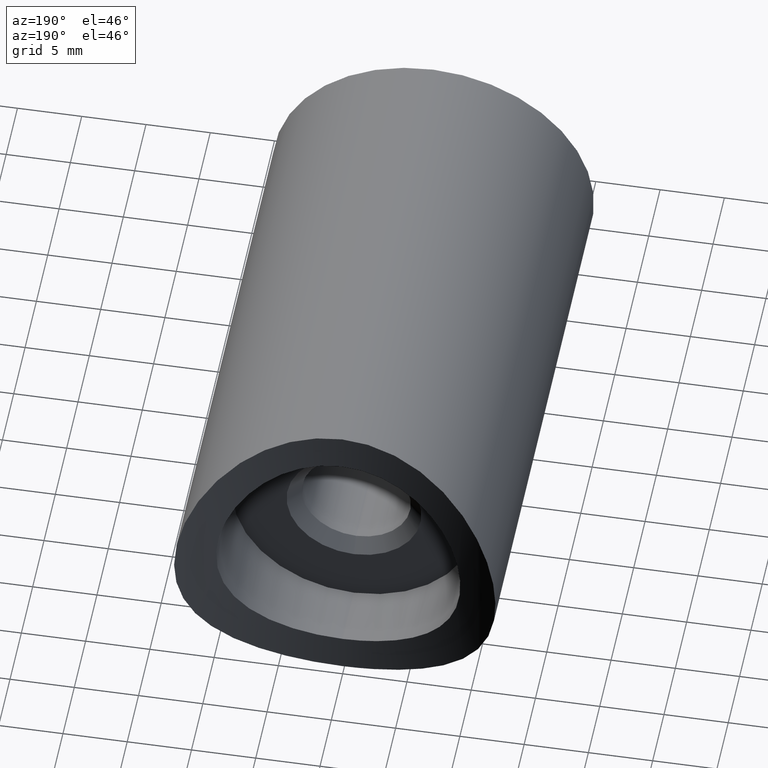
[diagram: clean part render]
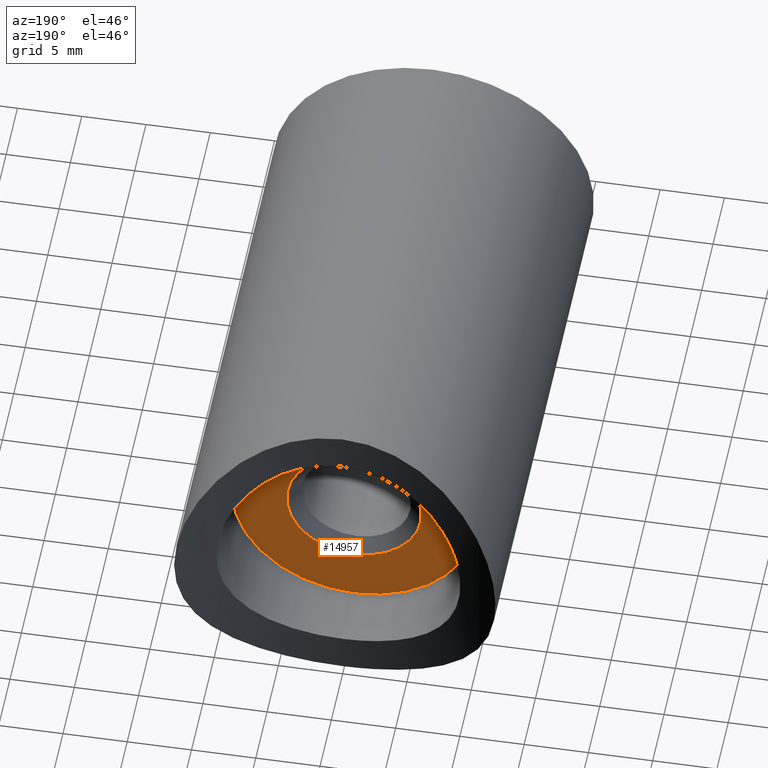
[diagram: same view with one face highlighted and labeled with its STEP entity id]
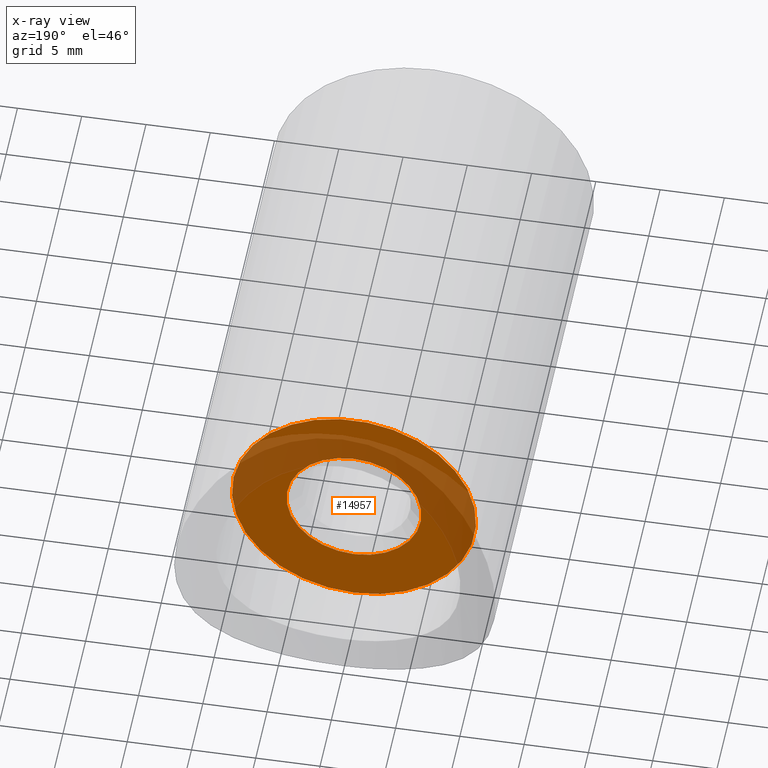
[diagram: x-ray of the same camera — body ghosted, the highlighted face saturated]
A machine part, auxiliary view. The second image highlights one B-rep face of the part: STEP entity #14957.
The next image is the same camera in x-ray: the body ghosted, the highlighted face saturated — about 40% of this face is hidden behind the body in this view.
In plain terms, the highlighted planar face has unit normal (0, -1, 0).
Its self-contained STEP definition (entity closure, byte-faithful):
#58 = AXIS2_PLACEMENT_3D ( 'NONE', #1732, #3054, #9934 ) ;
#1299 = VERTEX_POINT ( 'NONE', #11811 ) ;
#1697 = CIRCLE ( 'NONE', #12731, 5.249999999999991118 ) ;
#1732 = CARTESIAN_POINT ( 'NONE',  ( 0.000000000000000000, 35.00000000000000000, 0.000000000000000000 ) ) ;
#1769 = CARTESIAN_POINT ( 'NONE',  ( 0.000000000000000000, 35.00000000000000000, 0.000000000000000000 ) ) ;
#2163 = FACE_OUTER_BOUND ( 'NONE', #4226, .T. ) ;
#3054 = DIRECTION ( 'NONE',  ( 0.000000000000000000, -1.000000000000000000, 0.000000000000000000 ) ) ;
#3358 = EDGE_LOOP ( 'NONE', ( #9682 ) ) ;
#4175 = DIRECTION ( 'NONE',  ( 0.000000000000000000, -1.000000000000000000, 0.000000000000000000 ) ) ;
#4226 = EDGE_LOOP ( 'NONE', ( #13589 ) ) ;
#4655 = CARTESIAN_POINT ( 'NONE',  ( 0.000000000000000000, 35.00000000000000000, 0.000000000000000000 ) ) ;
#5088 = AXIS2_PLACEMENT_3D ( 'NONE', #1769, #4175, #13605 ) ;
#5185 = CARTESIAN_POINT ( 'NONE',  ( 0.000000000000000000, 35.00000000000000000, -9.500000000000000000 ) ) ;
#5604 = VERTEX_POINT ( 'NONE', #5185 ) ;
#8544 = EDGE_CURVE ( 'NONE', #1299, #1299, #1697, .T. ) ;
#9676 = EDGE_CURVE ( 'NONE', #5604, #5604, #10881, .T. ) ;
#9682 = ORIENTED_EDGE ( 'NONE', *, *, #8544, .T. ) ;
#9934 = DIRECTION ( 'NONE',  ( 0.000000000000000000, 0.000000000000000000, -1.000000000000000000 ) ) ;
#10881 = CIRCLE ( 'NONE', #58, 9.500000000000000000 ) ;
#11811 = CARTESIAN_POINT ( 'NONE',  ( 0.000000000000000000, 35.00000000000000000, -5.249999999999991118 ) ) ;
#12234 = PLANE ( 'NONE',  #5088 ) ;
#12731 = AXIS2_PLACEMENT_3D ( 'NONE', #4655, #15072, #13883 ) ;
#13357 = FACE_BOUND ( 'NONE', #3358, .T. ) ;
#13589 = ORIENTED_EDGE ( 'NONE', *, *, #9676, .F. ) ;
#13605 = DIRECTION ( 'NONE',  ( 0.000000000000000000, -0.000000000000000000, -1.000000000000000000 ) ) ;
#13883 = DIRECTION ( 'NONE',  ( 0.000000000000000000, 0.000000000000000000, -1.000000000000000000 ) ) ;
#14957 = ADVANCED_FACE ( 'NONE', ( #13357, #2163 ), #12234, .F. ) ;
#15072 = DIRECTION ( 'NONE',  ( 0.000000000000000000, -1.000000000000000000, 0.000000000000000000 ) ) ;